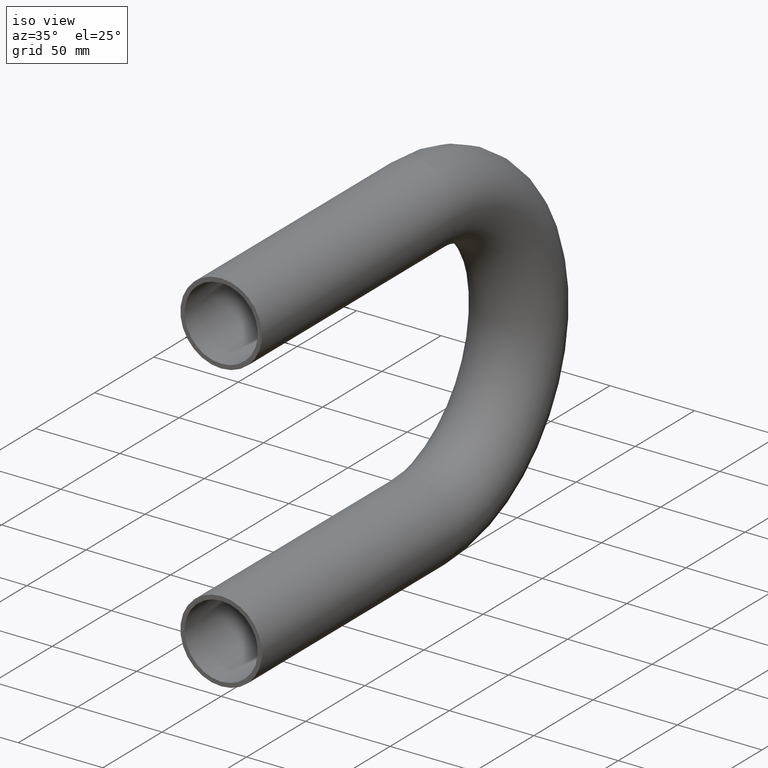
[diagram: clean part render]
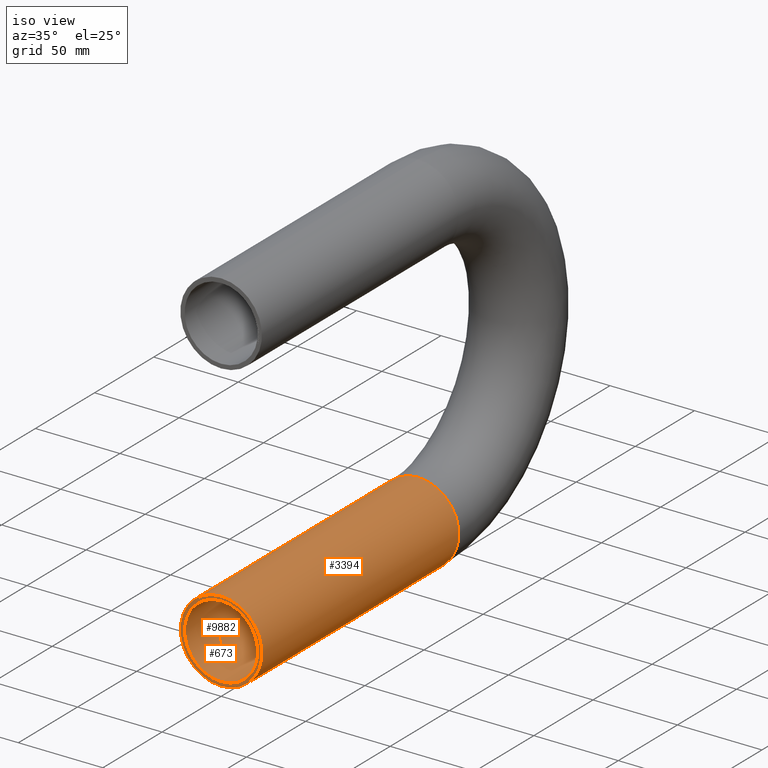
[diagram: same view with one multi-face feature highlighted, each face labeled with its STEP entity id]
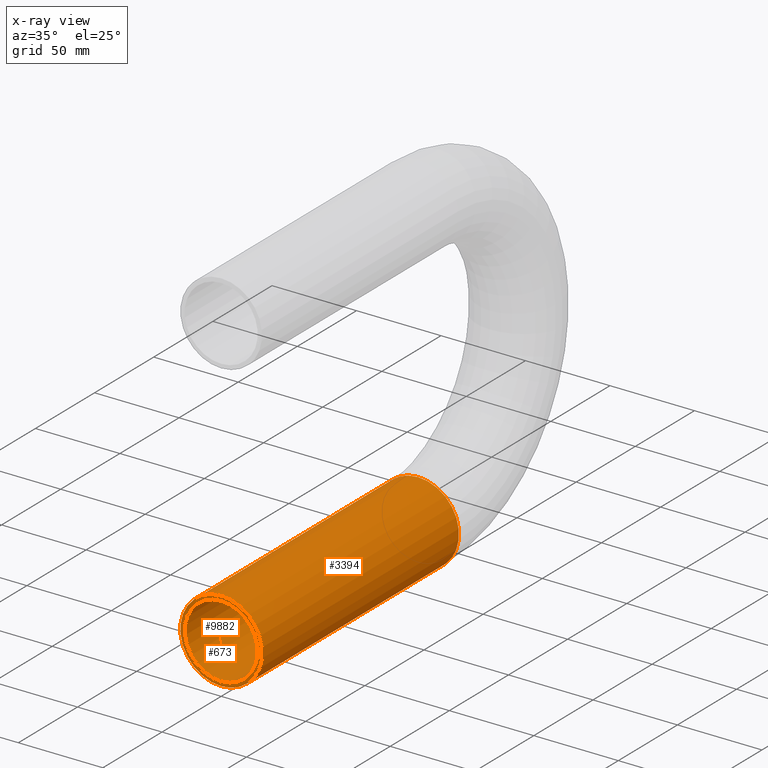
[diagram: x-ray of the same camera — body ghosted, the whole feature saturated]
A machine part, iso view. The highlighted faces form ONE feature: a stepped (counterbored) hole: 2 coaxial cylindrical walls of radii 21.65 -> 24.15 mm joined by 1 annular planar shoulder face(s). The faces share edges in the B-rep.
The next image is the same camera in x-ray: the body ghosted and the whole hole feature saturated, so the bore chain is visible through the body.
Their STEP definitions:
[1] entity #3394 (Cylinder):
#500 = CARTESIAN_POINT ( 'NONE',  ( 0.000000000000000000, 166.4823122224337624, -170.0000000000000000 ) ) ;
#720 = CIRCLE ( 'NONE', #2233, 24.15000000000000568 ) ;
#755 = ORIENTED_EDGE ( 'NONE', *, *, #2273, .T. ) ;
#1483 = CARTESIAN_POINT ( 'NONE',  ( 0.000000000000000000, 0.000000000000000000, -170.0000000000000000 ) ) ;
#1526 = DIRECTION ( 'NONE',  ( 0.000000000000000000, -1.000000000000000000, -1.224646799147353207E-16 ) ) ;
#1966 = VERTEX_POINT ( 'NONE', #11947 ) ;
#2233 = AXIS2_PLACEMENT_3D ( 'NONE', #1483, #6541, #9608 ) ;
#2273 = EDGE_CURVE ( 'NONE', #13083, #13083, #11781, .T. ) ;
#2327 = EDGE_CURVE ( 'NONE', #1966, #1966, #720, .T. ) ;
#2908 = CARTESIAN_POINT ( 'NONE',  ( 0.000000000000000000, 166.4823122224337624, -194.1500000000000057 ) ) ;
#3394 = ADVANCED_FACE ( 'NONE', ( #4044, #13077 ), #12748, .T. ) ;
#3547 = ORIENTED_EDGE ( 'NONE', *, *, #2327, .F. ) ;
#4044 = FACE_OUTER_BOUND ( 'NONE', #8815, .T. ) ;
#4497 = DIRECTION ( 'NONE',  ( 0.000000000000000000, 0.000000000000000000, -1.000000000000000000 ) ) ;
#6350 = AXIS2_PLACEMENT_3D ( 'NONE', #500, #8563, #9591 ) ;
#6541 = DIRECTION ( 'NONE',  ( 0.000000000000000000, -1.000000000000000000, -1.224646799147353207E-16 ) ) ;
#8507 = CARTESIAN_POINT ( 'NONE',  ( 0.000000000000000000, 166.4823122224337624, -170.0000000000000000 ) ) ;
#8563 = DIRECTION ( 'NONE',  ( 0.000000000000000000, -1.000000000000000000, 0.000000000000000000 ) ) ;
#8755 = AXIS2_PLACEMENT_3D ( 'NONE', #8507, #1526, #4497 ) ;
#8815 = EDGE_LOOP ( 'NONE', ( #755 ) ) ;
#9591 = DIRECTION ( 'NONE',  ( 0.000000000000000000, 0.000000000000000000, -1.000000000000000000 ) ) ;
#9608 = DIRECTION ( 'NONE',  ( 0.000000000000000000, 1.224646799147353207E-16, -1.000000000000000000 ) ) ;
#9760 = EDGE_LOOP ( 'NONE', ( #3547 ) ) ;
#11781 = CIRCLE ( 'NONE', #8755, 24.15000000000000568 ) ;
#11947 = CARTESIAN_POINT ( 'NONE',  ( 0.000000000000000000, 2.957522019940858719E-15, -194.1500000000000057 ) ) ;
#12748 = CYLINDRICAL_SURFACE ( 'NONE', #6350, 24.15000000000000568 ) ;
#13077 = FACE_OUTER_BOUND ( 'NONE', #9760, .T. ) ;
#13083 = VERTEX_POINT ( 'NONE', #2908 ) ;
[2] entity #673 (Cylinder):
#453 = CARTESIAN_POINT ( 'NONE',  ( 0.000000000000000000, 0.000000000000000000, -170.0000000000000000 ) ) ;
#525 = DIRECTION ( 'NONE',  ( 0.000000000000000000, -1.000000000000000000, -1.224646799147353207E-16 ) ) ;
#673 = ADVANCED_FACE ( 'NONE', ( #11778, #10677 ), #9556, .F. ) ;
#821 = AXIS2_PLACEMENT_3D ( 'NONE', #5799, #9742, #4867 ) ;
#1267 = EDGE_LOOP ( 'NONE', ( #12158 ) ) ;
#1343 = VERTEX_POINT ( 'NONE', #8928 ) ;
#1796 = CARTESIAN_POINT ( 'NONE',  ( 0.000000000000000000, 166.4823122224337624, -170.0000000000000000 ) ) ;
#2614 = EDGE_CURVE ( 'NONE', #1343, #1343, #3065, .T. ) ;
#3065 = CIRCLE ( 'NONE', #821, 21.65000000000000213 ) ;
#3421 = AXIS2_PLACEMENT_3D ( 'NONE', #1796, #8823, #9892 ) ;
#4180 = EDGE_CURVE ( 'NONE', #4362, #4362, #7802, .T. ) ;
#4362 = VERTEX_POINT ( 'NONE', #6956 ) ;
#4867 = DIRECTION ( 'NONE',  ( 0.000000000000000000, 0.000000000000000000, -1.000000000000000000 ) ) ;
#5799 = CARTESIAN_POINT ( 'NONE',  ( 0.000000000000000000, 166.4823122224337624, -170.0000000000000000 ) ) ;
#6956 = CARTESIAN_POINT ( 'NONE',  ( 0.000000000000000000, 2.651360320154020454E-15, -191.6500000000000057 ) ) ;
#7802 = CIRCLE ( 'NONE', #10383, 21.65000000000000213 ) ;
#8823 = DIRECTION ( 'NONE',  ( 0.000000000000000000, -1.000000000000000000, 0.000000000000000000 ) ) ;
#8928 = CARTESIAN_POINT ( 'NONE',  ( 0.000000000000000000, 166.4823122224337624, -191.6500000000000057 ) ) ;
#9556 = CYLINDRICAL_SURFACE ( 'NONE', #3421, 21.65000000000000213 ) ;
#9742 = DIRECTION ( 'NONE',  ( 0.000000000000000000, -1.000000000000000000, 0.000000000000000000 ) ) ;
#9892 = DIRECTION ( 'NONE',  ( 0.000000000000000000, 0.000000000000000000, -1.000000000000000000 ) ) ;
#10383 = AXIS2_PLACEMENT_3D ( 'NONE', #453, #525, #12696 ) ;
#10677 = FACE_OUTER_BOUND ( 'NONE', #1267, .T. ) ;
#11778 = FACE_OUTER_BOUND ( 'NONE', #12186, .T. ) ;
#12158 = ORIENTED_EDGE ( 'NONE', *, *, #4180, .T. ) ;
#12165 = ORIENTED_EDGE ( 'NONE', *, *, #2614, .F. ) ;
#12186 = EDGE_LOOP ( 'NONE', ( #12165 ) ) ;
#12696 = DIRECTION ( 'NONE',  ( 0.000000000000000000, 1.224646799147353454E-16, -1.000000000000000000 ) ) ;
[3] entity #9882 (Plane):
#453 = CARTESIAN_POINT ( 'NONE',  ( 0.000000000000000000, 0.000000000000000000, -170.0000000000000000 ) ) ;
#525 = DIRECTION ( 'NONE',  ( 0.000000000000000000, -1.000000000000000000, -1.224646799147353207E-16 ) ) ;
#610 = DIRECTION ( 'NONE',  ( 0.000000000000000000, 1.224646799147353207E-16, -1.000000000000000000 ) ) ;
#720 = CIRCLE ( 'NONE', #2233, 24.15000000000000568 ) ;
#747 = CARTESIAN_POINT ( 'NONE',  ( 0.000000000000000000, 0.000000000000000000, -170.0000000000000000 ) ) ;
#1483 = CARTESIAN_POINT ( 'NONE',  ( 0.000000000000000000, 0.000000000000000000, -170.0000000000000000 ) ) ;
#1966 = VERTEX_POINT ( 'NONE', #11947 ) ;
#2233 = AXIS2_PLACEMENT_3D ( 'NONE', #1483, #6541, #9608 ) ;
#2327 = EDGE_CURVE ( 'NONE', #1966, #1966, #720, .T. ) ;
#4180 = EDGE_CURVE ( 'NONE', #4362, #4362, #7802, .T. ) ;
#4362 = VERTEX_POINT ( 'NONE', #6956 ) ;
#5393 = EDGE_LOOP ( 'NONE', ( #10443 ) ) ;
#6541 = DIRECTION ( 'NONE',  ( 0.000000000000000000, -1.000000000000000000, -1.224646799147353207E-16 ) ) ;
#6956 = CARTESIAN_POINT ( 'NONE',  ( 0.000000000000000000, 2.651360320154020454E-15, -191.6500000000000057 ) ) ;
#7793 = DIRECTION ( 'NONE',  ( 0.000000000000000000, -1.000000000000000000, -1.224646799147353207E-16 ) ) ;
#7802 = CIRCLE ( 'NONE', #10383, 21.65000000000000213 ) ;
#8224 = ORIENTED_EDGE ( 'NONE', *, *, #4180, .F. ) ;
#9124 = FACE_OUTER_BOUND ( 'NONE', #5393, .T. ) ;
#9142 = EDGE_LOOP ( 'NONE', ( #8224 ) ) ;
#9608 = DIRECTION ( 'NONE',  ( 0.000000000000000000, 1.224646799147353207E-16, -1.000000000000000000 ) ) ;
#9694 = PLANE ( 'NONE',  #12361 ) ;
#9882 = ADVANCED_FACE ( 'NONE', ( #9893, #9124 ), #9694, .T. ) ;
#9893 = FACE_BOUND ( 'NONE', #9142, .T. ) ;
#10383 = AXIS2_PLACEMENT_3D ( 'NONE', #453, #525, #12696 ) ;
#10443 = ORIENTED_EDGE ( 'NONE', *, *, #2327, .T. ) ;
#11947 = CARTESIAN_POINT ( 'NONE',  ( 0.000000000000000000, 2.957522019940858719E-15, -194.1500000000000057 ) ) ;
#12361 = AXIS2_PLACEMENT_3D ( 'NONE', #747, #7793, #610 ) ;
#12696 = DIRECTION ( 'NONE',  ( 0.000000000000000000, 1.224646799147353454E-16, -1.000000000000000000 ) ) ;